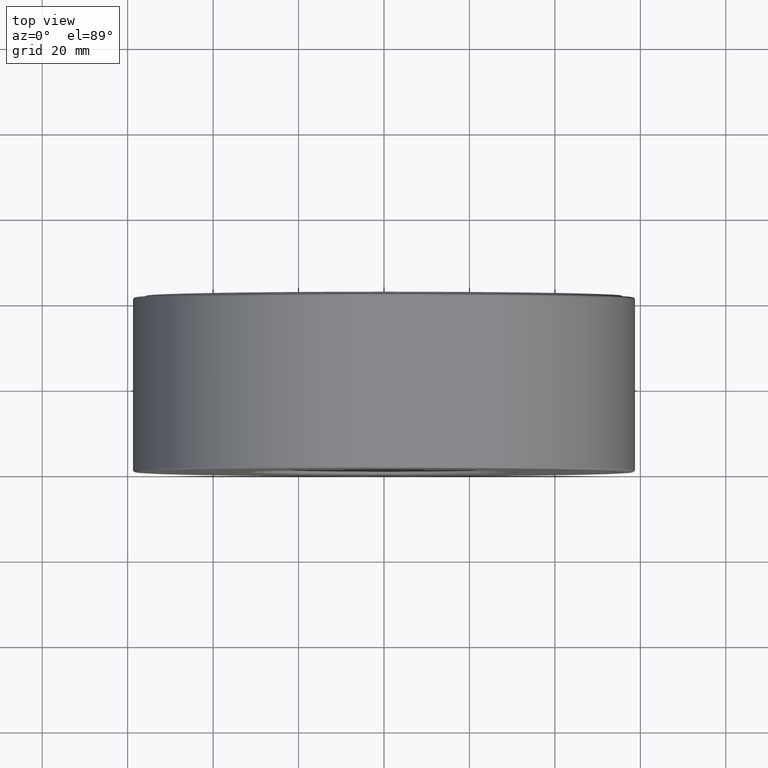
[diagram: clean part render]
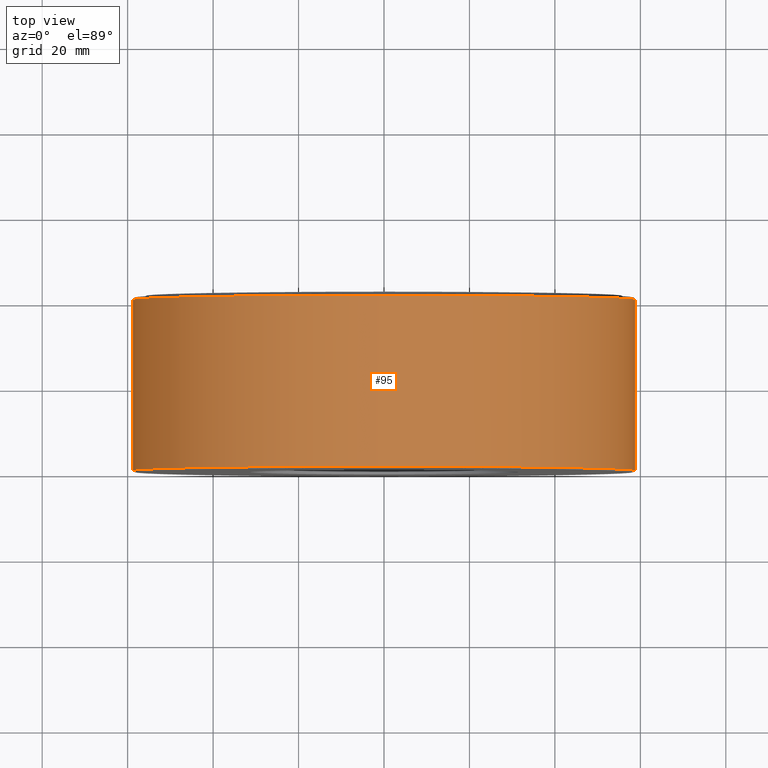
[diagram: same view with one face highlighted and labeled with its STEP entity id]
A machine part, top view. The second image highlights one B-rep face of the part: STEP entity #95.
In plain terms, the highlighted cylindrical surface (bore or boss wall) has radius 58.7375 mm, axis along (-0, 1, -0).
Its self-contained STEP definition (entity closure, byte-faithful):
#36 = DIRECTION ( 'NONE',  ( 0.0000000000000000000, 0.0000000000000000000, 1.000000000000000000 ) ) ;
#39 = FACE_OUTER_BOUND ( 'NONE', #442, .T. ) ;
#40 = AXIS2_PLACEMENT_3D ( 'NONE', #390, #332, #478 ) ;
#54 = CARTESIAN_POINT ( 'NONE',  ( 0.0000000000000000000, 1.589999999999999600, 2.312500000000000000 ) ) ;
#95 = ADVANCED_FACE ( 'NONE', ( #39, #321 ), #273, .T. ) ;
#97 = AXIS2_PLACEMENT_3D ( 'NONE', #545, #314, #36 ) ;
#122 = CIRCLE ( 'NONE', #198, 2.312500000000000000 ) ;
#198 = AXIS2_PLACEMENT_3D ( 'NONE', #566, #471, #243 ) ;
#243 = DIRECTION ( 'NONE',  ( 0.0000000000000000000, 0.0000000000000000000, 1.000000000000000000 ) ) ;
#249 = EDGE_CURVE ( 'NONE', #366, #366, #122, .T. ) ;
#273 = CYLINDRICAL_SURFACE ( 'NONE', #40, 2.312500000000000000 ) ;
#314 = DIRECTION ( 'NONE',  ( -0.0000000000000000000, 1.000000000000000000, -0.0000000000000000000 ) ) ;
#321 = FACE_OUTER_BOUND ( 'NONE', #451, .T. ) ;
#332 = DIRECTION ( 'NONE',  ( -0.0000000000000000000, 1.000000000000000000, -0.0000000000000000000 ) ) ;
#366 = VERTEX_POINT ( 'NONE', #600 ) ;
#390 = CARTESIAN_POINT ( 'NONE',  ( 0.0000000000000000000, 0.0000000000000000000, 0.0000000000000000000 ) ) ;
#399 = VERTEX_POINT ( 'NONE', #54 ) ;
#442 = EDGE_LOOP ( 'NONE', ( #534 ) ) ;
#451 = EDGE_LOOP ( 'NONE', ( #587 ) ) ;
#471 = DIRECTION ( 'NONE',  ( -0.0000000000000000000, 1.000000000000000000, -0.0000000000000000000 ) ) ;
#478 = DIRECTION ( 'NONE',  ( 0.0000000000000000000, 0.0000000000000000000, 1.000000000000000000 ) ) ;
#480 = CIRCLE ( 'NONE', #97, 2.312500000000000000 ) ;
#534 = ORIENTED_EDGE ( 'NONE', *, *, #553, .F. ) ;
#545 = CARTESIAN_POINT ( 'NONE',  ( 0.0000000000000000000, 1.589999999999999600, 0.0000000000000000000 ) ) ;
#553 = EDGE_CURVE ( 'NONE', #399, #399, #480, .T. ) ;
#566 = CARTESIAN_POINT ( 'NONE',  ( 0.0000000000000000000, 0.01499999999999997700, 0.0000000000000000000 ) ) ;
#587 = ORIENTED_EDGE ( 'NONE', *, *, #249, .T. ) ;
#600 = CARTESIAN_POINT ( 'NONE',  ( 0.0000000000000000000, 0.01499999999999997700, 2.312500000000000000 ) ) ;